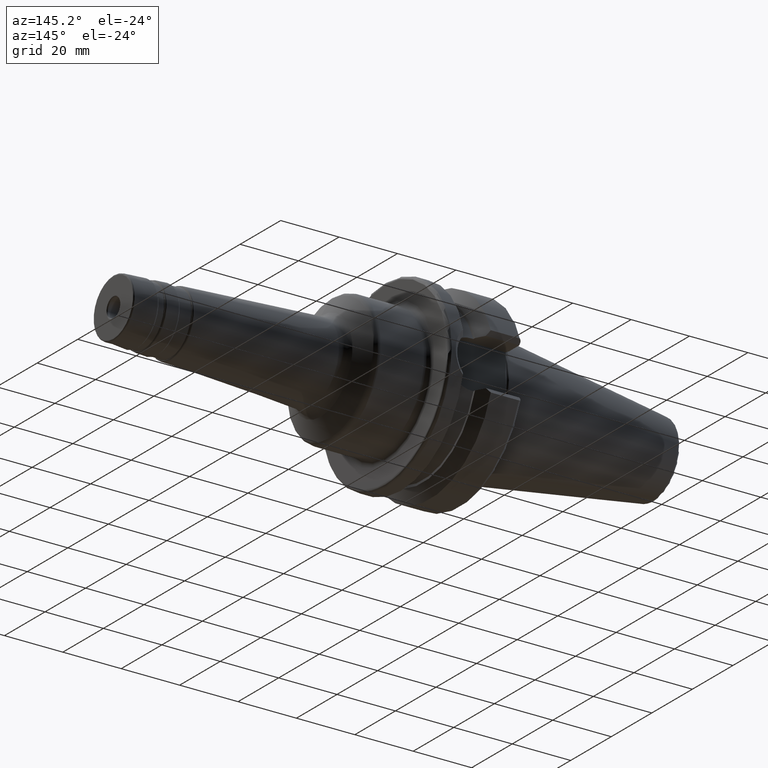
[diagram: clean part render]
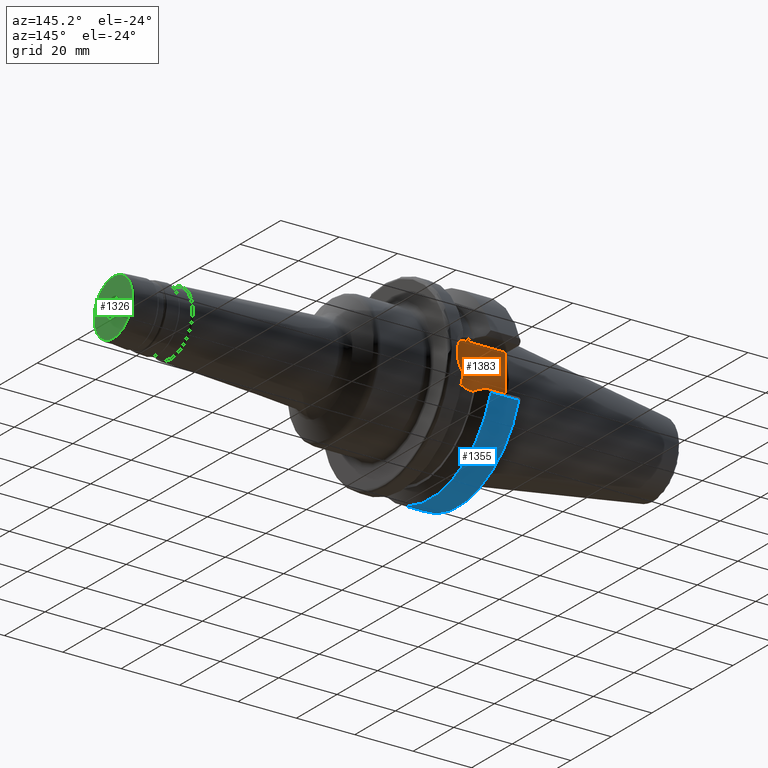
[diagram: same view with three faces highlighted in distinct colors, each labeled with its STEP entity id]
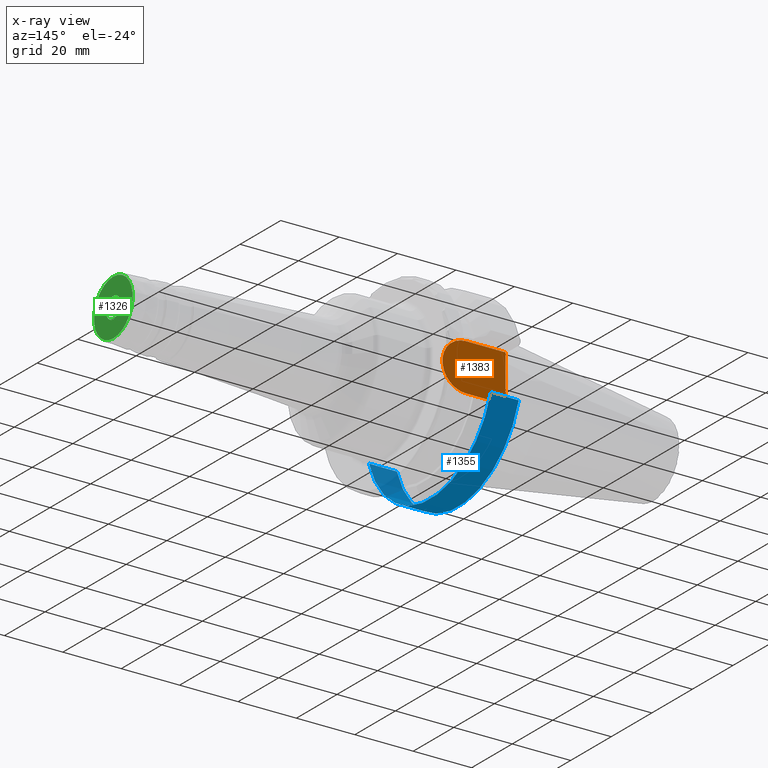
[diagram: x-ray of the same camera — body ghosted, the three highlighted faces saturated]
A machine part, auxiliary view with three faces highlighted in distinct colors.
The next image is the same camera in x-ray (body ghosted, the three faces saturated) — at least one of them is partly hidden behind the body in this view.
Their STEP definitions:

[orange] entity #1383 — the highlighted planar face has unit normal (0, 1, 0).
#119=PLANE('',#1571);
#194=FACE_OUTER_BOUND('',#286,.T.);
#286=EDGE_LOOP('',(#1211,#1212,#1213,#1214,#1215));
#343=LINE('',#2532,#416);
#364=LINE('',#2613,#437);
#369=LINE('',#2660,#442);
#370=LINE('',#2663,#443);
#416=VECTOR('',#1888,10.);
#437=VECTOR('',#1931,10.);
#442=VECTOR('',#1970,10.);
#443=VECTOR('',#1975,10.);
#531=CIRCLE('',#1572,8.05);
#632=VERTEX_POINT('',#2529);
#633=VERTEX_POINT('',#2531);
#654=VERTEX_POINT('',#2610);
#655=VERTEX_POINT('',#2612);
#662=VERTEX_POINT('',#2658);
#805=EDGE_CURVE('',#633,#632,#343,.T.);
#836=EDGE_CURVE('',#654,#655,#364,.T.);
#853=EDGE_CURVE('',#654,#662,#369,.T.);
#854=EDGE_CURVE('',#662,#633,#531,.T.);
#855=EDGE_CURVE('',#655,#632,#370,.T.);
#1211=ORIENTED_EDGE('',*,*,#836,.F.);
#1212=ORIENTED_EDGE('',*,*,#853,.T.);
#1213=ORIENTED_EDGE('',*,*,#854,.T.);
#1214=ORIENTED_EDGE('',*,*,#805,.T.);
#1215=ORIENTED_EDGE('',*,*,#855,.F.);
#1383=ADVANCED_FACE('',(#194),#119,.T.);
#1571=AXIS2_PLACEMENT_3D('',#2661,#1971,#1972);
#1572=AXIS2_PLACEMENT_3D('',#2662,#1973,#1974);
#1888=DIRECTION('',(-1.,0.,7.9585879901445E-17));
#1931=DIRECTION('',(0.,0.,-1.));
#1970=DIRECTION('',(1.,0.,7.95858799014451E-17));
#1971=DIRECTION('center_axis',(0.,1.,0.));
#1972=DIRECTION('ref_axis',(0.,0.,1.));
#1973=DIRECTION('center_axis',(0.,1.,0.));
#1974=DIRECTION('ref_axis',(0.,0.,1.));
#1975=DIRECTION('',(0.,0.,-1.));
#2529=CARTESIAN_POINT('',(1.4,22.6,-8.05));
#2531=CARTESIAN_POINT('',(14.95,22.6,-8.05));
#2532=CARTESIAN_POINT('',(14.95,22.6,-8.05));
#2610=CARTESIAN_POINT('',(1.4,22.6,8.05));
#2612=CARTESIAN_POINT('',(1.4,22.6,0.));
#2613=CARTESIAN_POINT('',(1.4,22.6,2.77555756156289E-16));
#2658=CARTESIAN_POINT('',(14.95,22.6,8.05));
#2660=CARTESIAN_POINT('',(1.00000000000002,22.6,8.05));
#2661=CARTESIAN_POINT('Origin',(12.,22.6,5.55111512312578E-16));
#2662=CARTESIAN_POINT('Origin',(14.95,22.6,0.));
#2663=CARTESIAN_POINT('',(1.4,22.6,2.77555756156289E-16));

[blue] entity #1355 — the highlighted cylindrical surface (partial cylindrical patch) has radius 31.5 mm, axis along (1, 0, 0).
#166=FACE_OUTER_BOUND('',#257,.T.);
#257=EDGE_LOOP('',(#1053,#1054,#1055,#1056));
#326=LINE('',#2359,#399);
#329=LINE('',#2371,#402);
#399=VECTOR('',#1831,10.);
#402=VECTOR('',#1838,10.);
#510=CIRCLE('',#1524,31.5);
#511=CIRCLE('',#1525,31.5000000000001);
#605=VERTEX_POINT('',#2347);
#606=VERTEX_POINT('',#2358);
#609=VERTEX_POINT('',#2368);
#610=VERTEX_POINT('',#2370);
#767=EDGE_CURVE('',#605,#606,#326,.T.);
#771=EDGE_CURVE('',#605,#609,#510,.T.);
#772=EDGE_CURVE('',#610,#609,#329,.T.);
#773=EDGE_CURVE('',#606,#610,#511,.T.);
#1053=ORIENTED_EDGE('',*,*,#767,.F.);
#1054=ORIENTED_EDGE('',*,*,#771,.T.);
#1055=ORIENTED_EDGE('',*,*,#772,.F.);
#1056=ORIENTED_EDGE('',*,*,#773,.F.);
#1303=CYLINDRICAL_SURFACE('',#1523,31.5);
#1355=ADVANCED_FACE('',(#166),#1303,.T.);
#1523=AXIS2_PLACEMENT_3D('',#2367,#1834,#1835);
#1524=AXIS2_PLACEMENT_3D('',#2369,#1836,#1837);
#1525=AXIS2_PLACEMENT_3D('',#2372,#1839,#1840);
#1831=DIRECTION('',(1.,0.,0.));
#1834=DIRECTION('center_axis',(1.,0.,0.));
#1835=DIRECTION('ref_axis',(0.,1.,0.));
#1836=DIRECTION('center_axis',(1.,0.,0.));
#1837=DIRECTION('ref_axis',(0.,0.,-1.));
#1838=DIRECTION('',(-1.,0.,0.));
#1839=DIRECTION('center_axis',(1.,0.,0.));
#1840=DIRECTION('ref_axis',(0.,0.,-1.));
#2347=CARTESIAN_POINT('',(1.99999999999999,-30.0059801089944,-9.58598757033586));
#2358=CARTESIAN_POINT('',(11.5690363073381,-30.0059801089944,-9.58598757033588));
#2359=CARTESIAN_POINT('',(6.78451815366905,-30.0059801089944,-9.58598757033587));
#2367=CARTESIAN_POINT('Origin',(6.78451815366905,0.,0.));
#2368=CARTESIAN_POINT('',(1.99999999999999,30.0059801089944,-9.58598757033586));
#2369=CARTESIAN_POINT('Origin',(1.99999999999999,0.,0.));
#2370=CARTESIAN_POINT('',(11.5690363073381,30.0059801089944,-9.58598757033588));
#2371=CARTESIAN_POINT('',(6.78451815366905,30.0059801089944,-9.58598757033587));
#2372=CARTESIAN_POINT('Origin',(11.5690363073381,0.,0.));

[green] entity #1326 — the highlighted planar face has unit normal (1, 0, 0).
#50=FACE_BOUND('',#225,.T.);
#100=PLANE('',#1457);
#137=FACE_OUTER_BOUND('',#224,.T.);
#224=EDGE_LOOP('',(#932));
#225=EDGE_LOOP('',(#933));
#471=CIRCLE('',#1456,3.575);
#472=CIRCLE('',#1458,9.52551771664256);
#566=VERTEX_POINT('',#2108);
#567=VERTEX_POINT('',#2112);
#704=EDGE_CURVE('',#566,#566,#471,.T.);
#705=EDGE_CURVE('',#567,#567,#472,.T.);
#932=ORIENTED_EDGE('',*,*,#705,.F.);
#933=ORIENTED_EDGE('',*,*,#704,.F.);
#1326=ADVANCED_FACE('',(#137,#50),#100,.T.);
#1456=AXIS2_PLACEMENT_3D('',#2110,#1683,#1684);
#1457=AXIS2_PLACEMENT_3D('',#2111,#1685,#1686);
#1458=AXIS2_PLACEMENT_3D('',#2113,#1687,#1688);
#1683=DIRECTION('center_axis',(1.,0.,0.));
#1684=DIRECTION('ref_axis',(0.,1.22464679914735E-16,1.));
#1685=DIRECTION('center_axis',(1.,0.,0.));
#1686=DIRECTION('ref_axis',(0.,0.,-1.));
#1687=DIRECTION('center_axis',(-1.,0.,0.));
#1688=DIRECTION('ref_axis',(0.,1.22464679914735E-16,1.));
#2108=CARTESIAN_POINT('',(120.,-4.37811230695179E-16,3.575));
#2110=CARTESIAN_POINT('Origin',(120.,0.,0.));
#2111=CARTESIAN_POINT('Origin',(120.,0.,-3.175));
#2112=CARTESIAN_POINT('',(120.,-1.16653947819077E-15,9.52551771664256));
#2113=CARTESIAN_POINT('Origin',(120.,0.,0.));